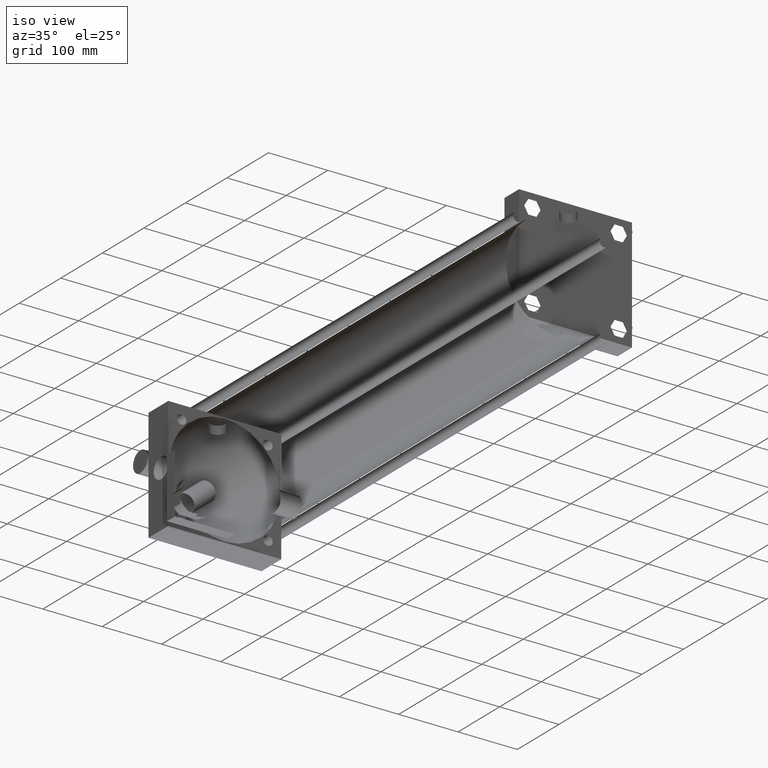
[diagram: clean part render]
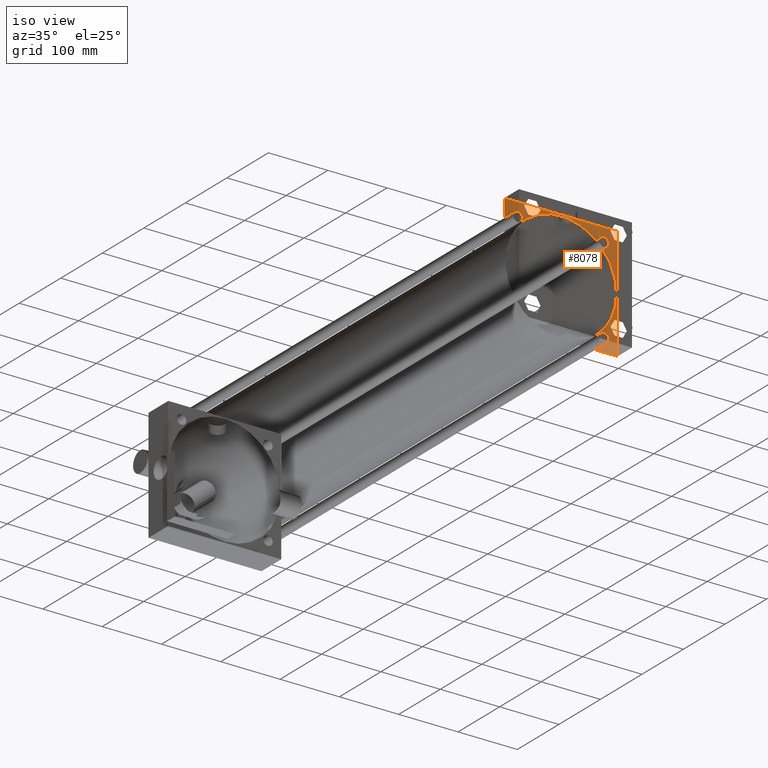
[diagram: same view with one face highlighted and labeled with its STEP entity id]
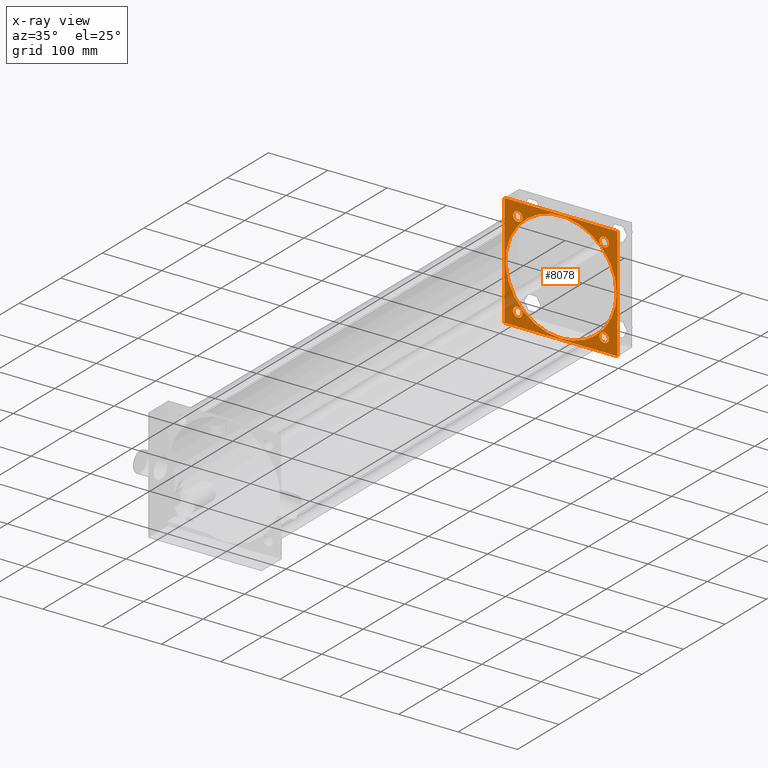
[diagram: x-ray of the same camera — body ghosted, the highlighted face saturated]
A machine part, iso view. The second image highlights one B-rep face of the part: STEP entity #8078.
The next image is the same camera in x-ray: the body ghosted, the highlighted face saturated — about 4% of this face is hidden behind the body in this view.
In plain terms, the highlighted planar face has unit normal (0, 1, 0).
Its self-contained STEP definition (entity closure, byte-faithful):
#1314=EDGE_CURVE('',#1320,#1320,#1315,.T.);
#1315=CIRCLE('',#1316,9.366250000E+001);
#1316=AXIS2_PLACEMENT_3D('',#1317,#1318,#1319);
#1317=CARTESIAN_POINT('',(0.000000000E+000,9.048750000E+002,0.000000000E+000));
#1318=DIRECTION('',(0.0E+000,1.0E+000,0.0E+000));
#1319=DIRECTION('',(1.0E+000,0.0E+000,0.0E+000));
#1320=VERTEX_POINT('',#1321);
#1321=CARTESIAN_POINT('',(9.366250000E+001,9.048750000E+002,0.000000000E+000));
#1396=EDGE_CURVE('',#1402,#1402,#1397,.T.);
#1397=CIRCLE('',#1398,7.937500000E+000);
#1398=AXIS2_PLACEMENT_3D('',#1399,#1400,#1401);
#1399=CARTESIAN_POINT('',(7.277100000E+001,9.048750000E+002,7.277100000E+001));
#1400=DIRECTION('',(0.0E+000,-1.0E+000,0.0E+000));
#1401=DIRECTION('',(-1.0E+000,0.0E+000,0.0E+000));
#1402=VERTEX_POINT('',#1403);
#1403=CARTESIAN_POINT('',(6.483350000E+001,9.048750000E+002,7.277100000E+001));
#1404=EDGE_CURVE('',#1410,#1410,#1405,.T.);
#1405=CIRCLE('',#1406,7.937500000E+000);
#1406=AXIS2_PLACEMENT_3D('',#1407,#1408,#1409);
#1407=CARTESIAN_POINT('',(-7.277100000E+001,9.048750000E+002,-7.277100000E+001));
#1408=DIRECTION('',(0.0E+000,1.0E+000,0.0E+000));
#1409=DIRECTION('',(1.0E+000,0.0E+000,0.0E+000));
#1410=VERTEX_POINT('',#1411);
#1411=CARTESIAN_POINT('',(-6.483350000E+001,9.048750000E+002,-7.277100000E+001));
#1420=EDGE_CURVE('',#1426,#1426,#1421,.T.);
#1421=CIRCLE('',#1422,7.937500000E+000);
#1422=AXIS2_PLACEMENT_3D('',#1423,#1424,#1425);
#1423=CARTESIAN_POINT('',(7.277100000E+001,9.048750000E+002,-7.277100000E+001));
#1424=DIRECTION('',(0.0E+000,1.0E+000,0.0E+000));
#1425=DIRECTION('',(1.0E+000,0.0E+000,0.0E+000));
#1426=VERTEX_POINT('',#1427);
#1427=CARTESIAN_POINT('',(8.070850000E+001,9.048750000E+002,-7.277100000E+001));
#1436=EDGE_CURVE('',#1442,#1442,#1437,.T.);
#1437=CIRCLE('',#1438,7.937500000E+000);
#1438=AXIS2_PLACEMENT_3D('',#1439,#1440,#1441);
#1439=CARTESIAN_POINT('',(-7.277100000E+001,9.048750000E+002,7.277100000E+001));
#1440=DIRECTION('',(0.0E+000,1.0E+000,0.0E+000));
#1441=DIRECTION('',(1.0E+000,0.0E+000,0.0E+000));
#1442=VERTEX_POINT('',#1443);
#1443=CARTESIAN_POINT('',(-6.483350000E+001,9.048750000E+002,7.277100000E+001));
#2615=FACE_OUTER_BOUND('',#2621,.T.);
#2616=FACE_BOUND('',#2622,.T.);
#2617=FACE_BOUND('',#2623,.T.);
#2618=FACE_BOUND('',#2624,.T.);
#2619=FACE_BOUND('',#2625,.T.);
#2620=FACE_BOUND('',#2626,.T.);
#2621=EDGE_LOOP('',(#2627));
#2622=EDGE_LOOP('',(#2628));
#2623=EDGE_LOOP('',(#2637));
#2624=EDGE_LOOP('',(#2646));
#2625=EDGE_LOOP('',(#2655,#2656,#2657,#2658));
#2626=EDGE_LOOP('',(#2687));
#2627=ORIENTED_EDGE('',*,*,#1314,.T.);
#2628=ORIENTED_EDGE('',*,*,#1436,.T.);
#2637=ORIENTED_EDGE('',*,*,#1420,.T.);
#2646=ORIENTED_EDGE('',*,*,#1404,.T.);
#2655=ORIENTED_EDGE('',*,*,#2659,.T.);
#2656=ORIENTED_EDGE('',*,*,#2668,.T.);
#2657=ORIENTED_EDGE('',*,*,#2675,.T.);
#2658=ORIENTED_EDGE('',*,*,#2682,.T.);
#2659=EDGE_CURVE('',#2664,#2665,#2660,.T.);
#2660=LINE('',#2661,#2662);
#2661=CARTESIAN_POINT('',(-9.525000000E+001,9.048750000E+002,-9.525000000E+001));
#2662=VECTOR('',#2663,1.0E+000);
#2663=DIRECTION('',(1.0E+000,0.0E+000,0.0E+000));
#2664=VERTEX_POINT('',#2666);
#2665=VERTEX_POINT('',#2667);
#2666=CARTESIAN_POINT('',(-9.525000000E+001,9.048750000E+002,-9.525000000E+001));
#2667=CARTESIAN_POINT('',(9.525000000E+001,9.048750000E+002,-9.525000000E+001));
#2668=EDGE_CURVE('',#2665,#2673,#2669,.T.);
#2669=LINE('',#2670,#2671);
#2670=CARTESIAN_POINT('',(9.525000000E+001,9.048750000E+002,-9.525000000E+001));
#2671=VECTOR('',#2672,1.0E+000);
#2672=DIRECTION('',(0.0E+000,0.0E+000,1.0E+000));
#2673=VERTEX_POINT('',#2674);
#2674=CARTESIAN_POINT('',(9.525000000E+001,9.048750000E+002,9.525000000E+001));
#2675=EDGE_CURVE('',#2673,#2680,#2676,.T.);
#2676=LINE('',#2677,#2678);
#2677=CARTESIAN_POINT('',(9.525000000E+001,9.048750000E+002,9.525000000E+001));
#2678=VECTOR('',#2679,1.0E+000);
#2679=DIRECTION('',(-1.0E+000,0.0E+000,0.0E+000));
#2680=VERTEX_POINT('',#2681);
#2681=CARTESIAN_POINT('',(-9.525000000E+001,9.048750000E+002,9.525000000E+001));
#2682=EDGE_CURVE('',#2680,#2664,#2683,.T.);
#2683=LINE('',#2684,#2685);
#2684=CARTESIAN_POINT('',(-9.525000000E+001,9.048750000E+002,9.525000000E+001));
#2685=VECTOR('',#2686,1.0E+000);
#2686=DIRECTION('',(0.0E+000,0.0E+000,-1.0E+000));
#2687=ORIENTED_EDGE('',*,*,#1396,.F.);
#2696=PLANE('',#2697);
#2697=AXIS2_PLACEMENT_3D('',#2698,#2699,#2700);
#2698=CARTESIAN_POINT('',(-9.525000000E+001,9.048750000E+002,-9.525000000E+001));
#2699=DIRECTION('',(0.0E+000,1.0E+000,0.0E+000));
#2700=DIRECTION('',(0.0E+000,0.0E+000,1.0E+000));
#8078=ADVANCED_FACE('',(#2615,#2616,#2617,#2618,#2619,#2620),#2696,.F.);